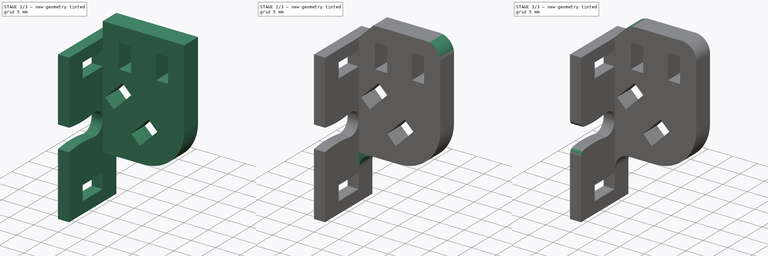
[diagram: build sequence overview — one tinted view per stage of 3, left to right]
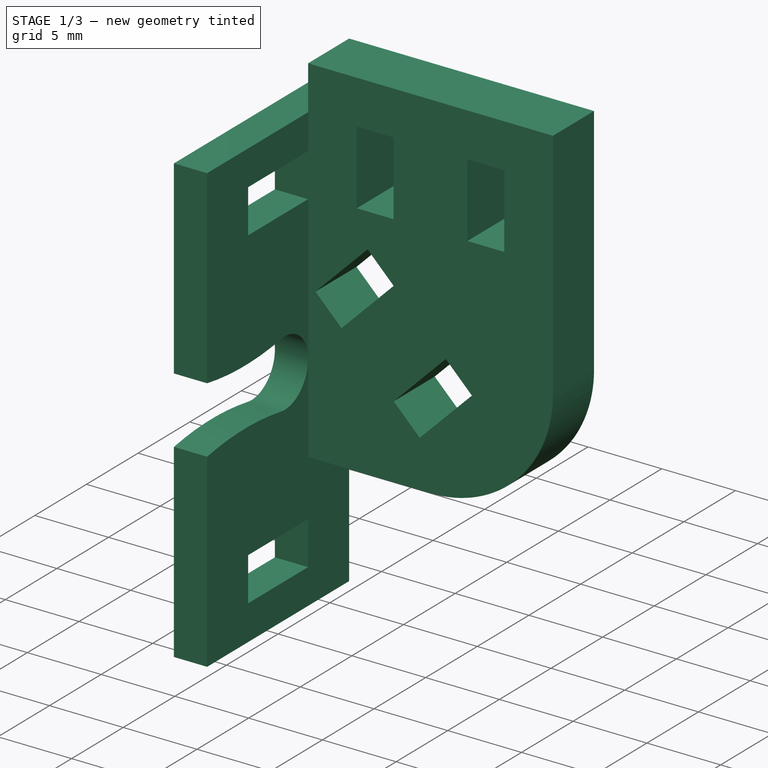
[diagram: stage 1 of 3 — iso view after this stage's code; geometry added in this stage tinted green]
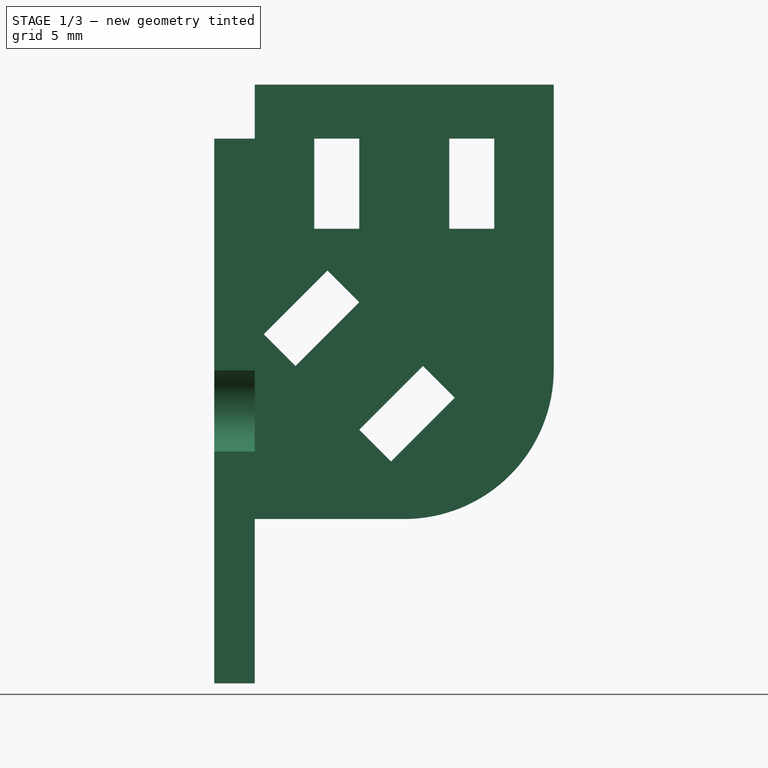
[diagram: stage 1 of 3 — front view after this stage's code; geometry added in this stage tinted green]
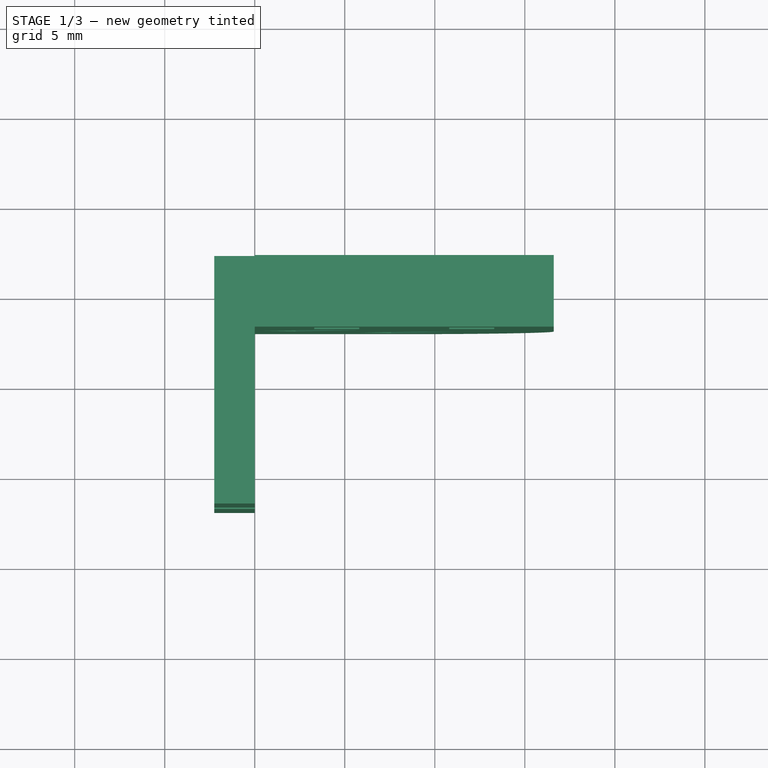
[diagram: stage 1 of 3 — top view after this stage's code; geometry added in this stage tinted green]
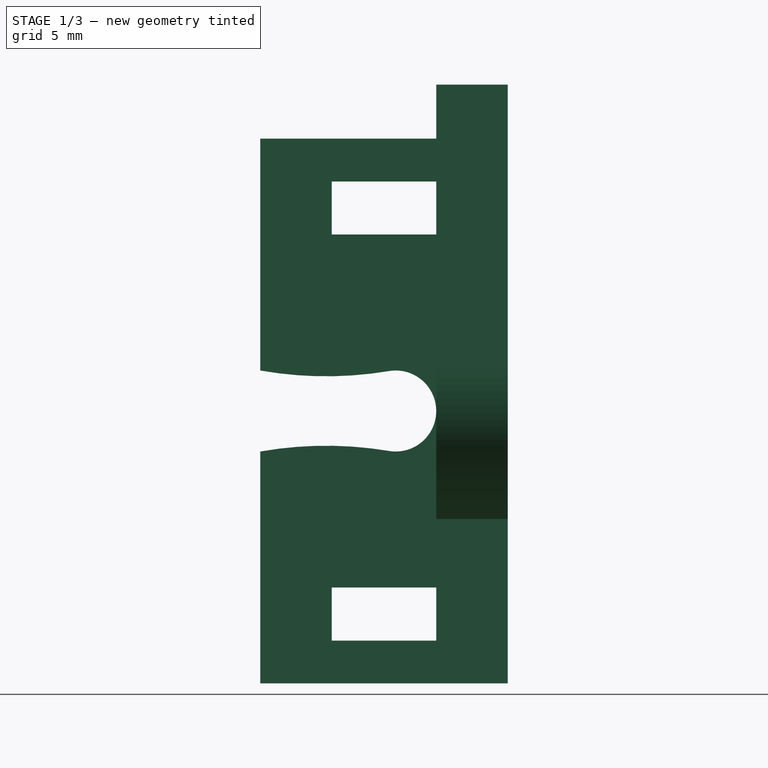
[diagram: stage 1 of 3 — right view after this stage's code; geometry added in this stage tinted green]
FCSTD DOCUMENT  (FreeCAD 0.19R24276 (Git))
Label: x-cable-chain-bracket
License: All rights reserved
LicenseURL: http://en.wikipedia.org/wiki/All_rights_reserved
objects: PartDesign::Fillet×3, Sketcher::SketchObject×2, PartDesign::Pad×2, PartDesign::Plane×2, PartDesign::Chamfer×1, PartDesign::Body×1
note: 17 computed .brp shape members not serialized (recipe doc carries the construction recipe); baked Part::Feature solids carry a one-line shape summary decoded from their .brp

FEATURE [Sketcher::SketchObject] Sketch
  FullyConstrained = false
  MapMode = 5
  Placement = pos=(0,0,0) rot=(0.57735,0.57735,0.57735;2.0944rad)
  Support = -> [YZ_Plane]
  sketch-geometry (24):
    g0: LineSegment StartX=-6.875 StartY=-15.125 StartZ=0 EndX=6.875 EndY=-15.125 EndZ=0
    g1: LineSegment StartX=6.875 StartY=-15.125 StartZ=0 EndX=6.875 EndY=15.125 EndZ=0
    g2: LineSegment StartX=6.875 StartY=15.125 StartZ=0 EndX=-6.875 EndY=15.125 EndZ=0
    g3: LineSegment StartX=-6.875 StartY=15.125 StartZ=0 EndX=-6.875 EndY=2.25 EndZ=0
    g4: ArcOfCircle CenterX=0 CenterY=0 CenterZ=0 NormalX=0 NormalY=0 NormalZ=1 AngleXU=0 Radius=2.25 StartAngle=4.71239 EndAngle=7.85398
    g5: LineSegment StartX=-6.875 StartY=-2.25 StartZ=0 EndX=9e-16 EndY=-2.25 EndZ=0
    g6: LineSegment StartX=-6.875 StartY=2.25 StartZ=0 EndX=9e-16 EndY=2.25 EndZ=0
    g7: LineSegment StartX=-6.875 StartY=-2.25 StartZ=0 EndX=-6.875 EndY=-15.125 EndZ=0
    g8: LineSegment StartX=-2.9 StartY=12.75 StartZ=0 EndX=2.9 EndY=12.75 EndZ=0
    g9: LineSegment StartX=2.9 StartY=12.75 StartZ=0 EndX=2.9 EndY=9.8 EndZ=0
    g10: LineSegment StartX=2.9 StartY=9.8 StartZ=0 EndX=-2.9 EndY=9.8 EndZ=0
    g11: LineSegment StartX=-2.9 StartY=9.8 StartZ=0 EndX=-2.9 EndY=12.75 EndZ=0
    g12: LineSegment StartX=-2.9 StartY=-12.75 StartZ=0 EndX=2.9 EndY=-12.75 EndZ=0
    g13: LineSegment StartX=2.9 StartY=-12.75 StartZ=0 EndX=2.9 EndY=-9.8 EndZ=0
    g14: LineSegment StartX=2.9 StartY=-9.8 StartZ=0 EndX=-2.9 EndY=-9.8 EndZ=0
    g15: LineSegment StartX=-2.9 StartY=-9.8 StartZ=0 EndX=-2.9 EndY=-12.75 EndZ=0
    g16: ArcOfCircle CenterX=-3.4375 CenterY=21.794 CenterZ=0 NormalX=0 NormalY=0 NormalZ=1 AngleXU=0 Radius=19.844 StartAngle=4.53828 EndAngle=4.88649
    g17: GeomPoint X=-3.4375 Y=1.95 Z=0
    g18: ArcOfCircle CenterX=-3.4375 CenterY=-21.794 CenterZ=0 NormalX=0 NormalY=0 NormalZ=1 AngleXU=0 Radius=19.844 StartAngle=1.39669 EndAngle=1.7449
    g19: ArcOfCircle CenterX=0.65 CenterY=0 CenterZ=0 NormalX=0 NormalY=0 NormalZ=1 AngleXU=0 Radius=2.25 StartAngle=4.54586 EndAngle=8.02051
    g20: ArcOfCircle CenterX=-3.20879 CenterY=22.9572 CenterZ=0 NormalX=0 NormalY=0 NormalZ=1 AngleXU=0 Radius=21.0292 StartAngle=4.53715 EndAngle=4.87892
    g21: ArcOfCircle CenterX=-3.20879 CenterY=-22.9572 CenterZ=0 NormalX=0 NormalY=0 NormalZ=1 AngleXU=0 Radius=21.0292 StartAngle=1.40427 EndAngle=1.74603
    g22: GeomPoint X=-1.33358 Y=2.01173 Z=0
    g23: GeomPoint X=-3.37185 Y=-1.92859 Z=0
  constraints (60):
    c: Coincident(g0,g1)
    c: Coincident(g1,g2)
    c: Coincident(g2,g3)
    c: Coincident(g7,g0)
    c: Horizontal(g0)
    c: Vertical(g1)
    c: Symmetric(g2,g1,g-2)
    c: Symmetric(g0,g2,g-1)
    c: Coincident(g3,g6) = 1.5708
    c: Tangent(g5,g4) = -1.5708
    c: Tangent(g6,g4) = 1.5708
    c: Horizontal(g5)
    c: Coincident(g4,g-1)
    c: Tangent(g3,g7)
    c: Coincident(g5,g7)
    c: Vertical(g4,g4)
    c: DistanceX(g2,g2) = 13.75
    c: DistanceY(g1,g1) = 30.25
    c: Diameter(g4) = 4.5
    c: Coincident(g8,g9)
    c: Coincident(g9,g10)
    c: Coincident(g10,g11)
    c: Coincident(g11,g8)
    c: Horizontal(g8)
    c: Vertical(g9)
    c: Vertical(g11)
    c: Symmetric(g10,g9,g-2)
    c: Coincident(g12,g13)
    c: Coincident(g13,g14)
    c: Coincident(g14,g15)
    c: Coincident(g15,g12)
    c: Horizontal(g12)
    c: Horizontal(g14)
    c: Vertical(g13)
    c: Vertical(g15)
    c: Equal(g13,g9)
    c: Symmetric(g12,g8,g-1)
    c: Vertical(g12,g8)
    c: DistanceY(g11,g11) = 2.95
    c: DistanceX(g8,g8) = 5.8
    c: DistanceY(g13,g9) = 19.6
    c: Coincident(g16,g3)
    c: Coincident(g16,g4)
    c: PointOnObject(g17,g16)
    c: Vertical(g17,g16)
    c: DistanceY(g17,g6) = 0.3
    c: Coincident(g18,g5)
    c: Coincident(g18,g4)
    c: Equal(g18,g16)
    c: Vertical(g19,g19)
    c: Equal(g4,g19) = 4.5
    c: Coincident(g21,g19)
    c: Equal(g21,g20)
    c: Coincident(g20,g6)
    c: Coincident(g21,g5)
    c: PointOnObject(g19,g-1)
    c: Tangent(g20,g19) = 1.5708
    c: PointOnObject(g22,g20)
    c: Distance(g-1,g19) = 0.65
    c: PointOnObject(g23,g21)
FEATURE [PartDesign::Pad] Pad
  Direction = (1,1,1)
  Length = 2.25
  Length2 = 100
  Placement = pos=(0,0,0) rot=(0.57735,0.57735,0.57735;2.0944rad)
  Profile = -> Sketch
  Reversed = true
  Type = 0
FEATURE [PartDesign::Plane] DatumPlane
  Length = 60
  MapMode = 5
  Placement = pos=(3.1e-15,6.875,-1.5e-15) rot=(0.57735,0.57735,0.57735;4.18879rad)
  ResizeMode = 0
  Support = -> [Pad]
  Width = 60
FEATURE [Sketcher::SketchObject] Sketch001
  ExternalGeometry = -> [Pad]
  FullyConstrained = true
  MapMode = 5
  Placement = pos=(3.1e-15,6.875,-1.5e-15) rot=(0.57735,0.57735,0.57735;4.18879rad)
  Support = -> [DatumPlane]
  sketch-geometry (26):
    g0: LineSegment StartX=-6 StartY=-7.4e-15 StartZ=0 EndX=15.125 EndY=-7.4e-15 EndZ=0
    g1: LineSegment StartX=2.3033 StartY=16.6066 StartZ=0 EndX=15.125 EndY=16.6066 EndZ=0
    g2: LineSegment StartX=15.125 StartY=16.6066 StartZ=0 EndX=15.125 EndY=-7.1e-15 EndZ=0
    g3: LineSegment StartX=15.125 StartY=3.3033 StartZ=0 EndX=10.125 EndY=3.3033 EndZ=0
    g4: LineSegment StartX=10.125 StartY=3.3033 StartZ=0 EndX=10.125 EndY=5.8033 EndZ=0
    g5: LineSegment StartX=10.125 StartY=5.8033 StartZ=0 EndX=15.125 EndY=5.8033 EndZ=0
    g6: LineSegment StartX=15.125 StartY=5.8033 StartZ=0 EndX=15.125 EndY=3.3033 EndZ=0
    g7: LineSegment StartX=15.125 StartY=10.8033 StartZ=0 EndX=10.125 EndY=10.8033 EndZ=0
    g8: LineSegment StartX=10.125 StartY=10.8033 StartZ=0 EndX=10.125 EndY=13.3033 EndZ=0
    g9: LineSegment StartX=10.125 StartY=13.3033 StartZ=0 EndX=15.125 EndY=13.3033 EndZ=0
    g10: LineSegment StartX=15.125 StartY=13.3033 StartZ=0 EndX=15.125 EndY=10.8033 EndZ=0
    g11: LineSegment StartX=4.26777 StartY=0.5 StartZ=0 EndX=7.8033 EndY=4.03553 EndZ=0
    g12: LineSegment StartX=7.8033 StartY=4.03553 StartZ=0 EndX=6.03553 EndY=5.8033 EndZ=0
    g13: LineSegment StartX=6.03553 StartY=5.8033 StartZ=0 EndX=2.5 EndY=2.26777 EndZ=0
    g14: LineSegment StartX=2.5 StartY=2.26777 StartZ=0 EndX=4.26777 EndY=0.5 EndZ=0
    g15: GeomPoint X=15.125 Y=8.3033 Z=0
    g16: LineSegment StartX=15.125 StartY=8.3033 StartZ=0 EndX=-6 EndY=8.3033 EndZ=0
    g17: LineSegment StartX=-1.03553 StartY=5.8033 StartZ=0 EndX=2.5 EndY=9.33883 EndZ=0
    g18: LineSegment StartX=2.5 StartY=9.33883 StartZ=0 EndX=0.732233 EndY=11.1066 EndZ=0
    g19: LineSegment StartX=0.732233 StartY=11.1066 StartZ=0 EndX=-2.8033 EndY=7.57107 EndZ=0
    g20: LineSegment StartX=-2.8033 StartY=7.57107 StartZ=0 EndX=-1.03553 EndY=5.8033 EndZ=0
    g21: LineSegment StartX=-6 StartY=-7.4e-15 StartZ=0 EndX=-6 EndY=8.3033 EndZ=0
    g22: ArcOfCircle CenterX=2.3033 CenterY=8.3033 CenterZ=0 NormalX=0 NormalY=0 NormalZ=1 AngleXU=0 Radius=8.3033 StartAngle=1.5708 EndAngle=3.14159
    g23: LineSegment StartX=15.125 StartY=-7.1e-15 StartZ=0 EndX=18.125 EndY=0 EndZ=0
    g24: LineSegment StartX=18.125 StartY=0 StartZ=0 EndX=18.125 EndY=16.6066 EndZ=0
    g25: LineSegment StartX=18.125 StartY=16.6066 StartZ=0 EndX=15.125 EndY=16.6066 EndZ=0
  constraints (69):
    c: Horizontal(g0)
    c: Coincident(g0,g-4)
    c: Horizontal(g1)
    c: Coincident(g2,g1)
    c: Coincident(g2,g-4)
    c: Vertical(g2)
    c: Coincident(g3,g4)
    c: Coincident(g4,g5)
    c: Coincident(g5,g6)
    c: Coincident(g6,g3)
    c: Horizontal(g3)
    c: Horizontal(g5)
    c: Vertical(g4)
    c: Vertical(g6)
    c: Coincident(g7,g8)
    c: Coincident(g8,g9)
    c: Coincident(g9,g10)
    c: Coincident(g10,g7)
    c: Horizontal(g7)
    c: Horizontal(g9)
    c: Vertical(g8)
    c: Coincident(g11,g12)
    c: Coincident(g12,g13)
    c: Coincident(g13,g14)
    c: Coincident(g14,g11)
    c: Equal(g11,g13)
    c: Parallel(g12,g14)
    c: Perpendicular(g12,g11)
    c: Equal(g13,g3)
    c: Equal(g12,g4)
    c: Equal(g8,g4)
    c: Equal(g7,g5)
    c: Tangent(g10,g6)
    c: DistanceY(g6,g6) = 2.5
    c: Symmetric(g2,g2,g15)
    c: Coincident(g16,g15)
    c: DistanceY(g5,g7) = 5
    c: DistanceX(g3,g3) = 5
    c: Coincident(g17,g18)
    c: Coincident(g18,g19)
    c: Coincident(g19,g20)
    c: Coincident(g20,g17)
    c: Equal(g17,g19)
    c: Parallel(g18,g20)
    c: Perpendicular(g18,g17)
    c: Equal(g12,g18)
    c: Tangent(g18,g12)
    c: Equal(g17,g13)
    c: Angle(g16,g17) = 0.785398
    c: Vertical(g21)
    c: Tangent(g21,g22) = 1.5708
    c: Tangent(g1,g22) = 1.5708
    c: Coincident(g21,g16)
    c: Symmetric(g7,g4,g16)
    c: Horizontal(g12,g4)
    c: Coincident(g23,g2)
    c: PointOnObject(g23,g-1)
    c: Coincident(g24,g23)
    c: Vertical(g24)
    c: Coincident(g25,g24)
    c: Coincident(g25,g2)
    c: Distance(g-1,g21) = 6
    c: Distance(g2,g23) = 3
    c: DistanceX(g7,g23) = 3
    c: DistanceY(g2,g11) = 0.5
    c: DistanceX(g-1,g13) = 2.5
    c: Coincident(g21,g0)
    c: Distance(g17,g12) = 5
    c: Horizontal(g25)
FEATURE [PartDesign::Pad] Pad001
  BaseFeature = -> Pad
  Direction = (1,1,1)
  Length = 4
  Length2 = 100
  Placement = pos=(0,0,0) rot=(0.57735,0.57735,0.57735;2.0944rad)
  Profile = -> Sketch001
  Reversed = true
  Type = 3
  UpToFace = -> Pad [Face14]
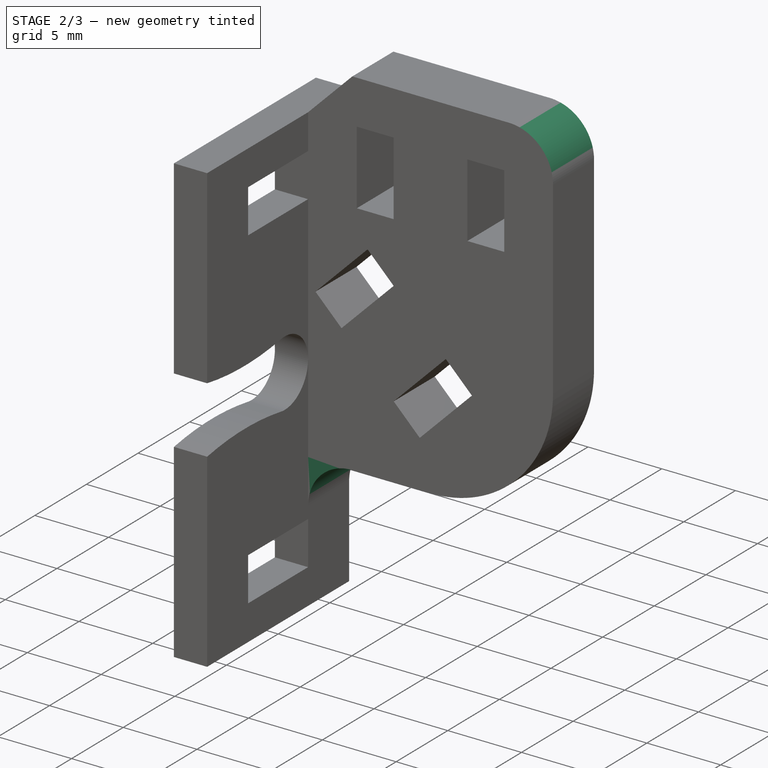
[diagram: stage 2 of 3 — iso view after this stage's code; geometry added in this stage tinted green]
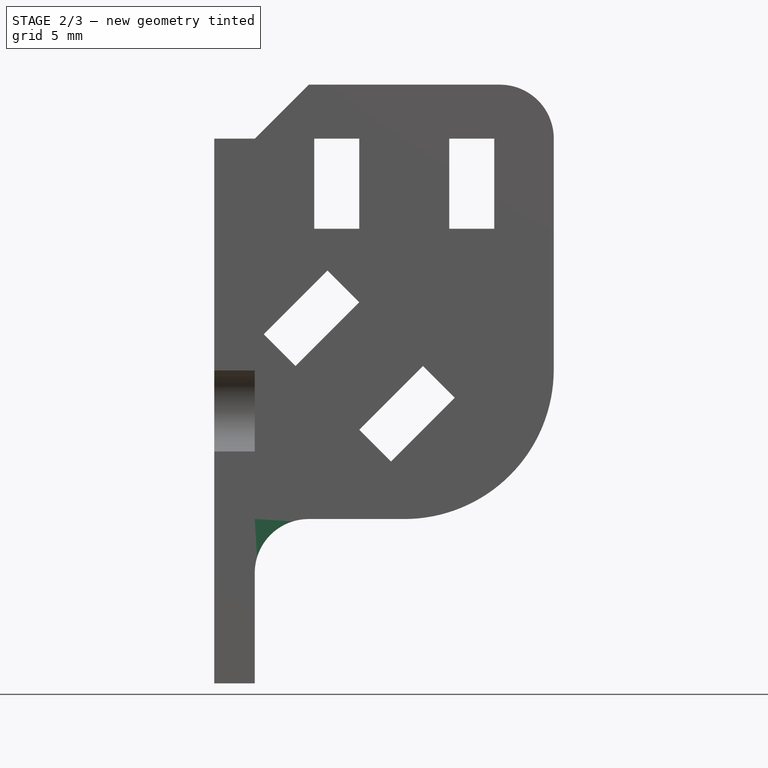
[diagram: stage 2 of 3 — front view after this stage's code; geometry added in this stage tinted green]
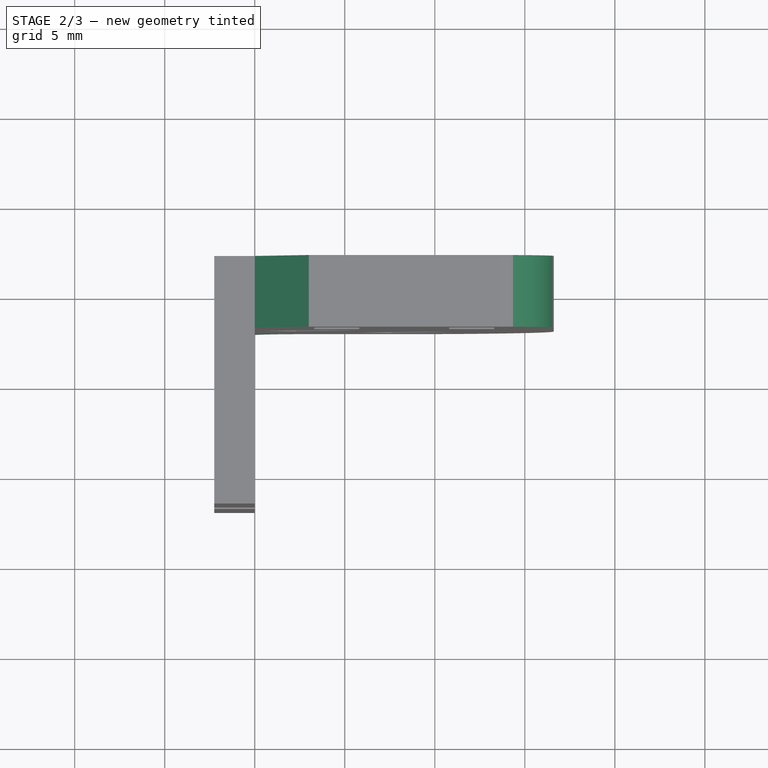
[diagram: stage 2 of 3 — top view after this stage's code; geometry added in this stage tinted green]
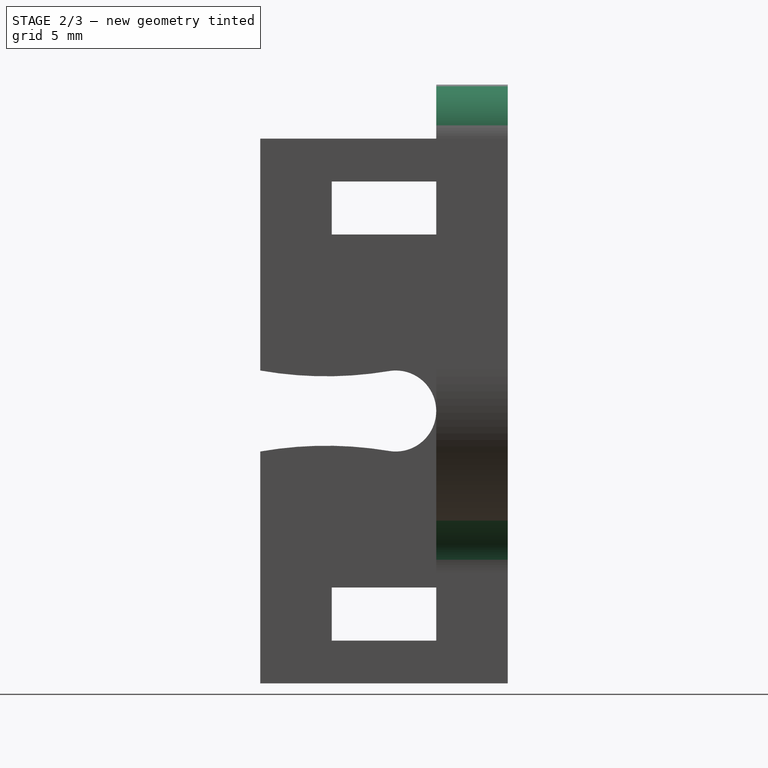
[diagram: stage 2 of 3 — right view after this stage's code; geometry added in this stage tinted green]
FEATURE [PartDesign::Fillet] Fillet
  Base = -> Pad001 [Edge13,Edge85]
  BaseFeature = -> Pad001
  Placement = pos=(0,0,0) rot=(0.57735,0.57735,0.57735;2.0944rad)
  Radius = 2.99
  SupportTransform = false
FEATURE [PartDesign::Chamfer] Chamfer
  Angle = 45
  Base = -> Fillet [Edge109]
  BaseFeature = -> Fillet
  ChamferType = 0
  FlipDirection = false
  Placement = pos=(0,0,0) rot=(0.57735,0.57735,0.57735;2.0944rad)
  Size = 2.9999
  Size2 = 1
  SupportTransform = false
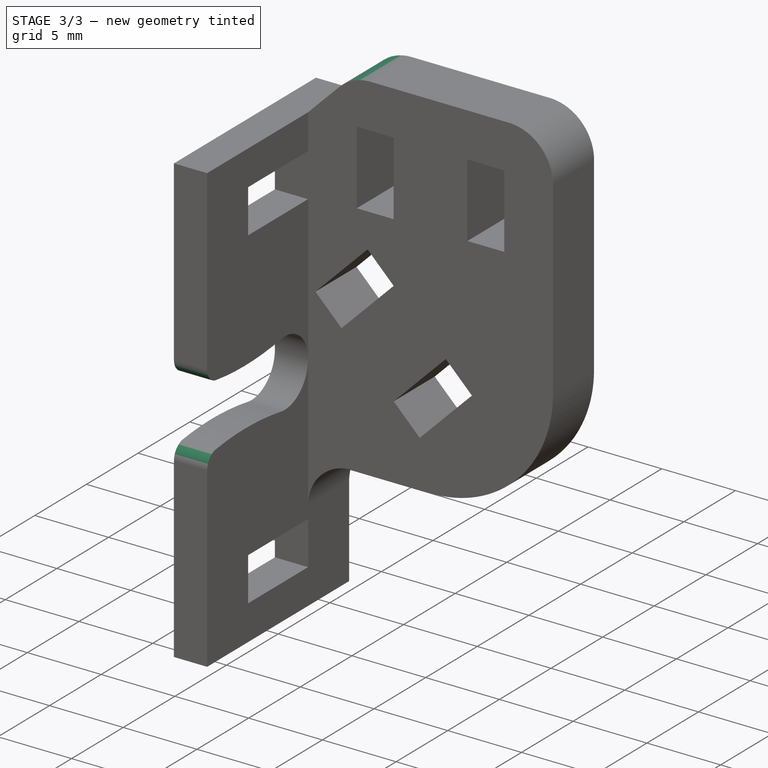
[diagram: stage 3 of 3 — iso view after this stage's code; geometry added in this stage tinted green]
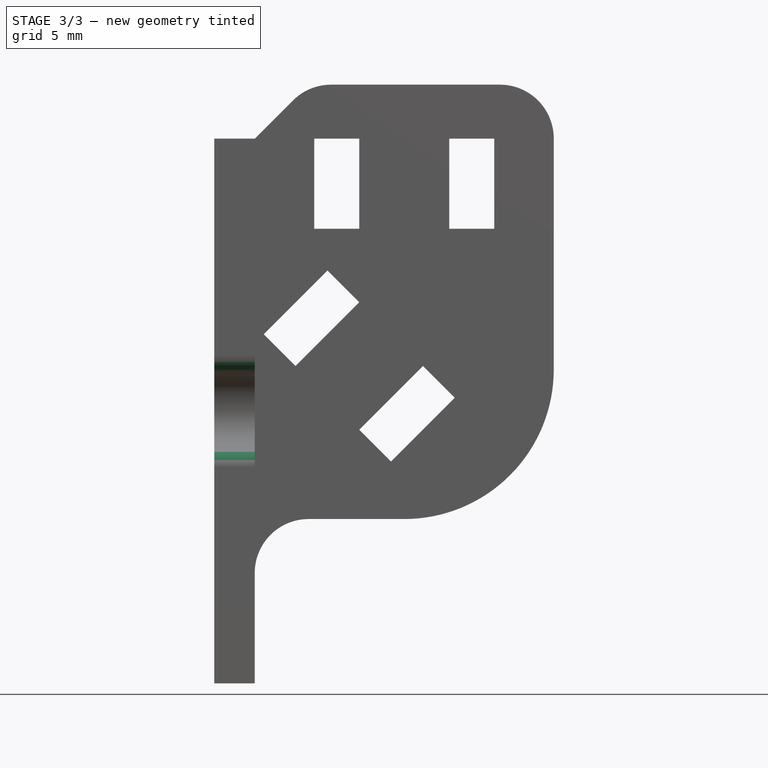
[diagram: stage 3 of 3 — front view after this stage's code; geometry added in this stage tinted green]
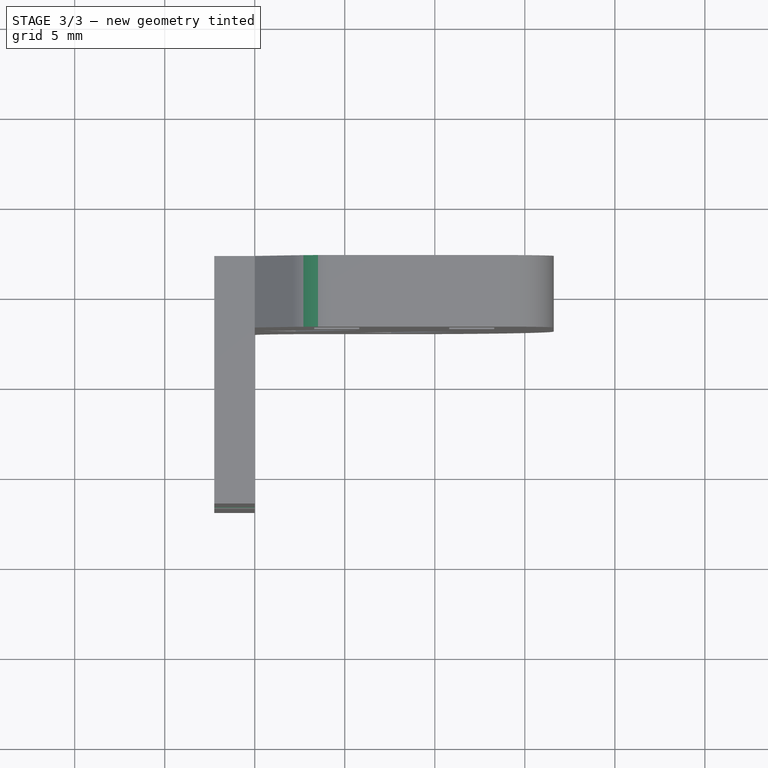
[diagram: stage 3 of 3 — top view after this stage's code; geometry added in this stage tinted green]
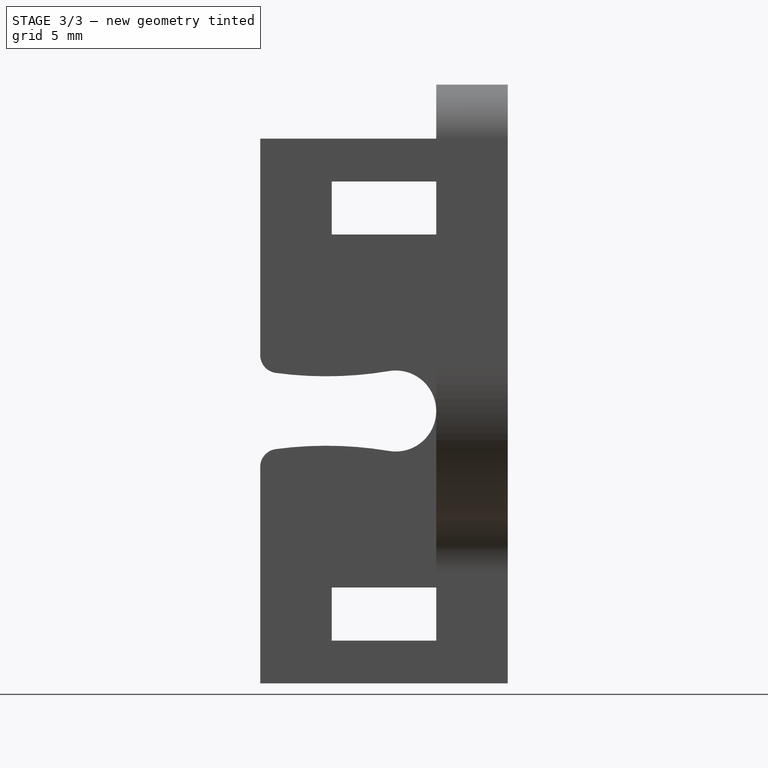
[diagram: stage 3 of 3 — right view after this stage's code; geometry added in this stage tinted green]
FEATURE [PartDesign::Fillet] Fillet001
  Base = -> Chamfer [Edge32]
  BaseFeature = -> Chamfer
  Placement = pos=(0,0,0) rot=(0.57735,0.57735,0.57735;2.0944rad)
  Radius = 3
  SupportTransform = false
FEATURE [PartDesign::Fillet] Fillet002
  Base = -> Fillet001 [Edge112,Edge130]
  BaseFeature = -> Fillet001
  Placement = pos=(0,0,0) rot=(0.57735,0.57735,0.57735;2.0944rad)
  Radius = 1
  SupportTransform = false
FEATURE [PartDesign::Plane] DatumPlane001  label="PrintPlane"
  Length = 60
  MapMode = 5
  Placement = pos=(4.5e-15,6.875,-1.1e-15) rot=(0.57735,0.57735,0.57735;4.18879rad)
  ResizeMode = 0
  Support = -> [Fillet002]
  Width = 60
FEATURE [PartDesign::Body] Body
  Group = -> [Sketch,Pad,DatumPlane,Sketch001,Pad001,Fillet,Chamfer,Fillet001,Fillet002,DatumPlane001]
  Origin = -> Origin
  Tip = -> Fillet002
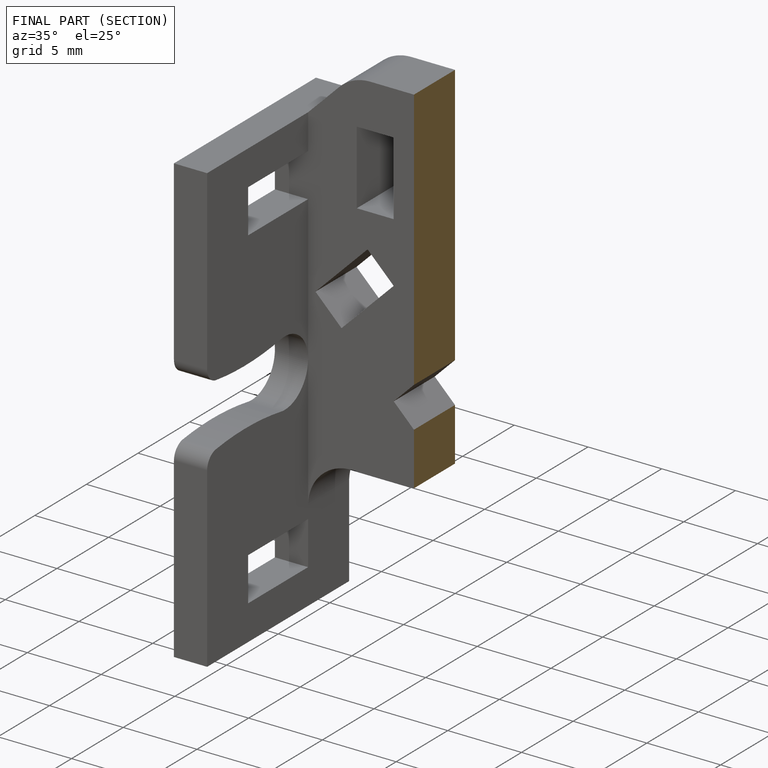
[diagram: finished part — half-section view (interior)]
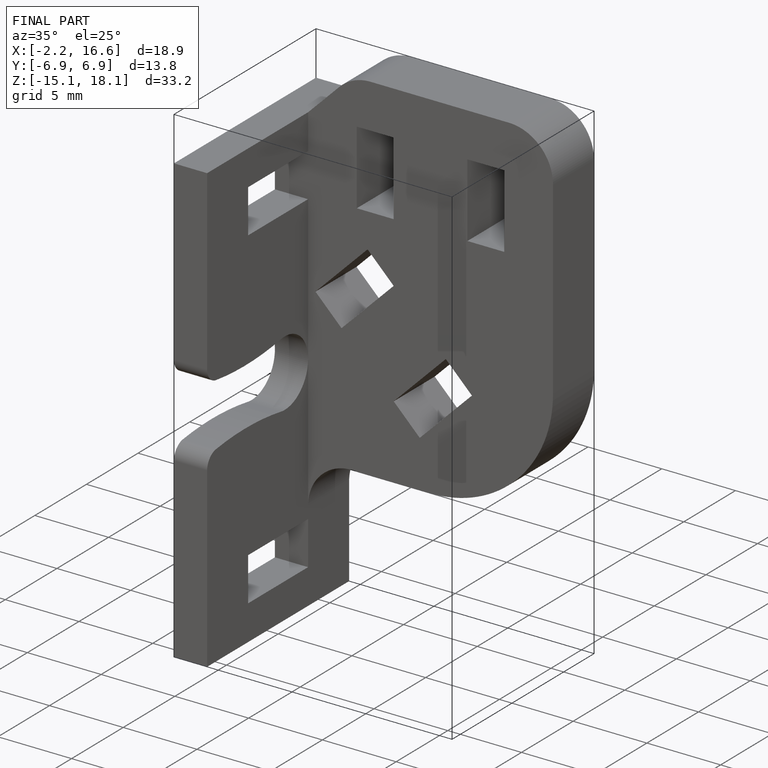
[diagram: finished part — iso view with bounding-box wireframe]
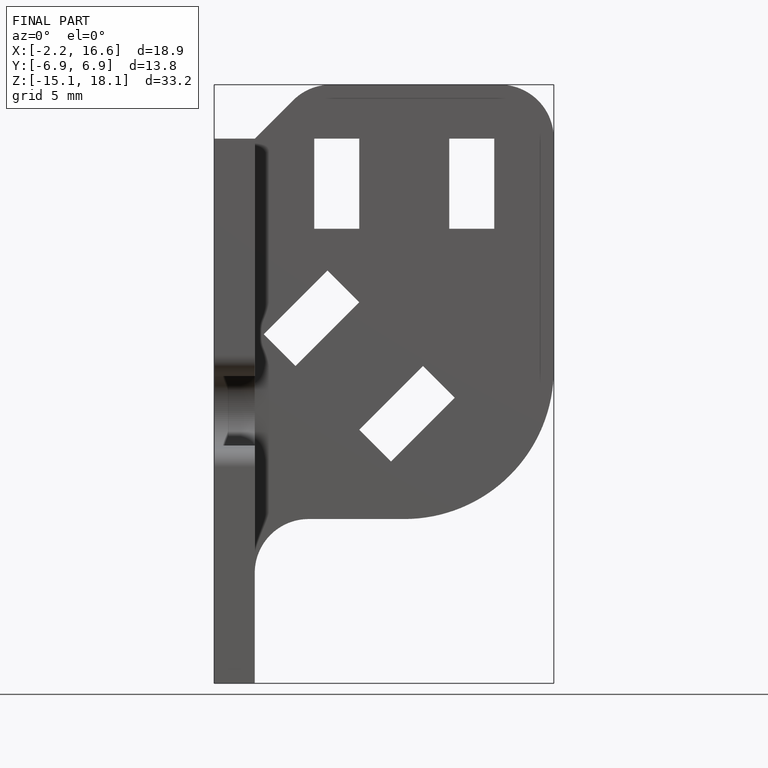
[diagram: finished part — front view with bounding-box wireframe]
